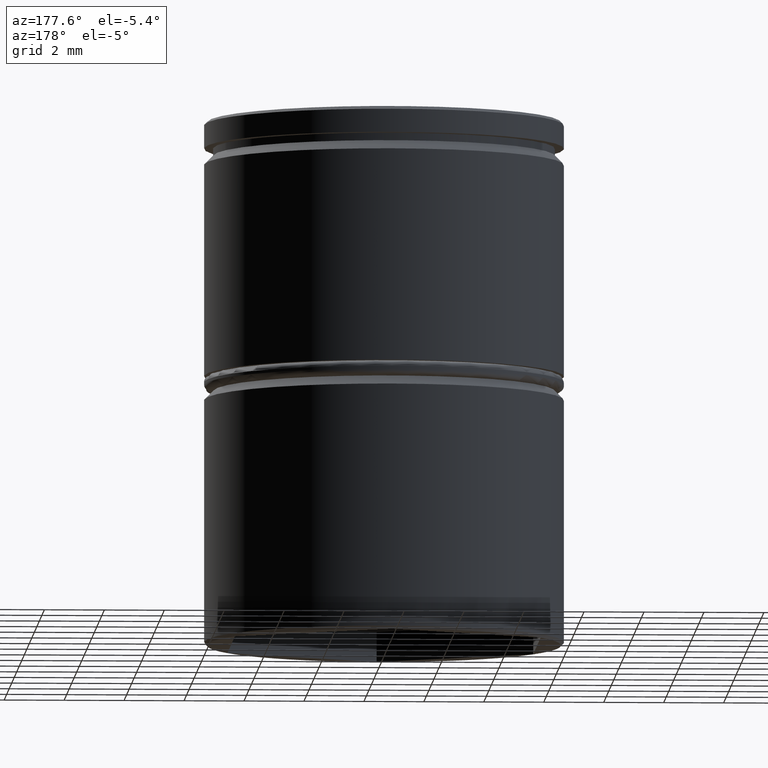
[diagram: clean part render]
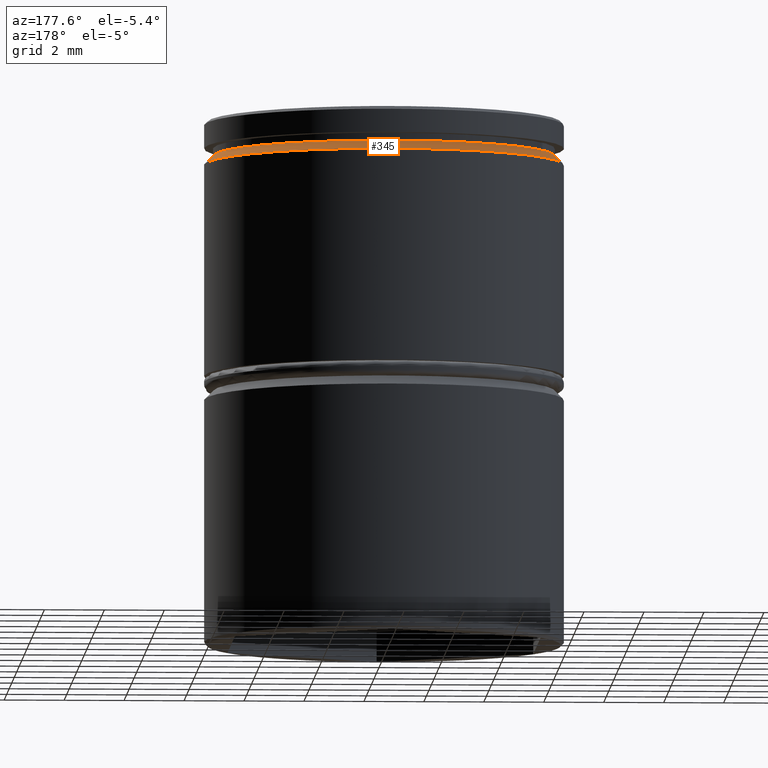
[diagram: same view with one face highlighted and labeled with its STEP entity id]
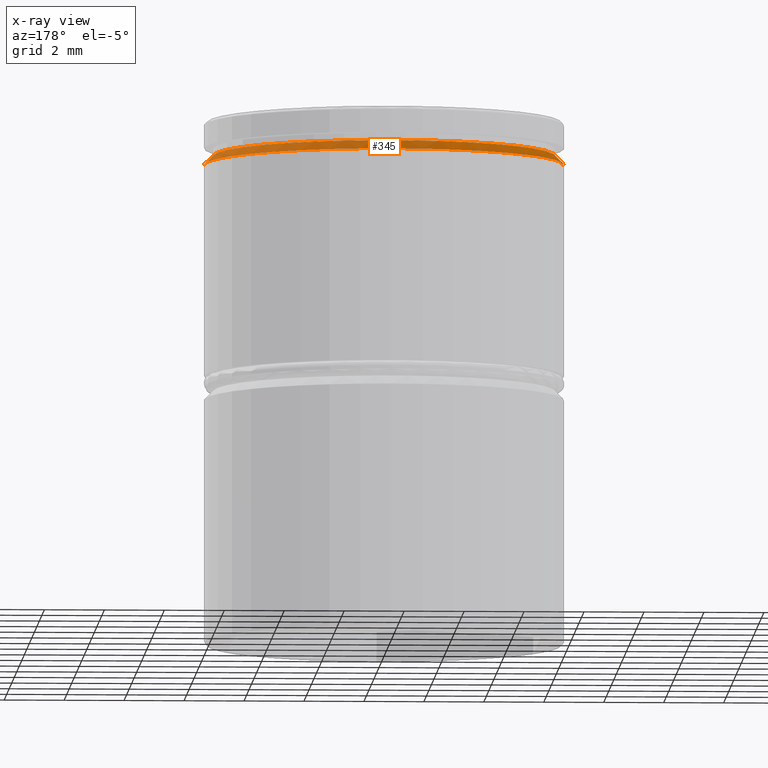
[diagram: x-ray of the same camera — body ghosted, the highlighted face saturated]
A machine part, auxiliary view. The second image highlights one B-rep face of the part: STEP entity #345.
The next image is the same camera in x-ray: the body ghosted, the highlighted face saturated — about 0% of this face is hidden behind the body in this view.
In plain terms, the highlighted conical surface has half-angle 45 deg.
Its self-contained STEP definition (entity closure, byte-faithful):
#16 = CARTESIAN_POINT ( 'NONE',  ( -6.000000000000000000, 7.347880794884119736E-16, -1.424999999999999156 ) ) ;
#59 = LINE ( 'NONE', #618, #86 ) ;
#81 = CARTESIAN_POINT ( 'NONE',  ( 0.000000000000000000, 0.000000000000000000, -1.125000000000000222 ) ) ;
#86 = VECTOR ( 'NONE', #222, 1000.000000000000000 ) ;
#139 = ORIENTED_EDGE ( 'NONE', *, *, #1001, .F. ) ;
#195 = DIRECTION ( 'NONE',  ( 1.000000000000000000, 0.000000000000000000, 0.000000000000000000 ) ) ;
#199 = CARTESIAN_POINT ( 'NONE',  ( -5.700000000000000178, 6.980486755139913108E-16, -1.125000000000000222 ) ) ;
#201 = AXIS2_PLACEMENT_3D ( 'NONE', #600, #907, #195 ) ;
#222 = DIRECTION ( 'NONE',  ( -0.7071067811865434649, 0.000000000000000000, -0.7071067811865516806 ) ) ;
#230 = AXIS2_PLACEMENT_3D ( 'NONE', #81, #489, #418 ) ;
#249 = CARTESIAN_POINT ( 'NONE',  ( 0.000000000000000000, 0.000000000000000000, -1.125000000000000222 ) ) ;
#258 = LINE ( 'NONE', #732, #746 ) ;
#277 = CARTESIAN_POINT ( 'NONE',  ( 6.000000000000000000, 0.000000000000000000, -1.424999999999999156 ) ) ;
#301 = VERTEX_POINT ( 'NONE', #495 ) ;
#317 = EDGE_CURVE ( 'NONE', #301, #903, #258, .T. ) ;
#345 = ADVANCED_FACE ( 'NONE', ( #476 ), #976, .T. ) ;
#363 = ORIENTED_EDGE ( 'NONE', *, *, #317, .T. ) ;
#418 = DIRECTION ( 'NONE',  ( -1.000000000000000000, 0.000000000000000000, 0.000000000000000000 ) ) ;
#455 = EDGE_CURVE ( 'NONE', #675, #903, #534, .T. ) ;
#476 = FACE_OUTER_BOUND ( 'NONE', #841, .T. ) ;
#489 = DIRECTION ( 'NONE',  ( 0.000000000000000000, 0.000000000000000000, -1.000000000000000000 ) ) ;
#495 = CARTESIAN_POINT ( 'NONE',  ( 5.700000000000000178, 0.000000000000000000, -1.125000000000000222 ) ) ;
#534 = CIRCLE ( 'NONE', #201, 6.000000000000000000 ) ;
#600 = CARTESIAN_POINT ( 'NONE',  ( 0.000000000000000000, 0.000000000000000000, -1.424999999999999156 ) ) ;
#618 = CARTESIAN_POINT ( 'NONE',  ( -5.700000000000004619, 0.000000000000000000, -1.125000000000000222 ) ) ;
#640 = DIRECTION ( 'NONE',  ( -0.000000000000000000, -0.000000000000000000, 1.000000000000000000 ) ) ;
#655 = DIRECTION ( 'NONE',  ( 1.000000000000000000, 0.000000000000000000, 0.000000000000000000 ) ) ;
#675 = VERTEX_POINT ( 'NONE', #16 ) ;
#696 = EDGE_CURVE ( 'NONE', #301, #925, #1025, .T. ) ;
#732 = CARTESIAN_POINT ( 'NONE',  ( 5.700000000000004619, 6.980486755139919025E-16, -1.125000000000000222 ) ) ;
#746 = VECTOR ( 'NONE', #956, 1000.000000000000000 ) ;
#841 = EDGE_LOOP ( 'NONE', ( #888, #363, #1014, #139 ) ) ;
#888 = ORIENTED_EDGE ( 'NONE', *, *, #696, .F. ) ;
#903 = VERTEX_POINT ( 'NONE', #277 ) ;
#907 = DIRECTION ( 'NONE',  ( 0.000000000000000000, 0.000000000000000000, -1.000000000000000000 ) ) ;
#925 = VERTEX_POINT ( 'NONE', #199 ) ;
#956 = DIRECTION ( 'NONE',  ( 0.7071067811865434649, 8.659560562354884787E-17, -0.7071067811865516806 ) ) ;
#976 = CONICAL_SURFACE ( 'NONE', #230, 5.700000000000004619, 0.7853981633974425058 ) ;
#1001 = EDGE_CURVE ( 'NONE', #925, #675, #59, .T. ) ;
#1012 = AXIS2_PLACEMENT_3D ( 'NONE', #249, #640, #655 ) ;
#1014 = ORIENTED_EDGE ( 'NONE', *, *, #455, .F. ) ;
#1025 = CIRCLE ( 'NONE', #1012, 5.700000000000000178 ) ;